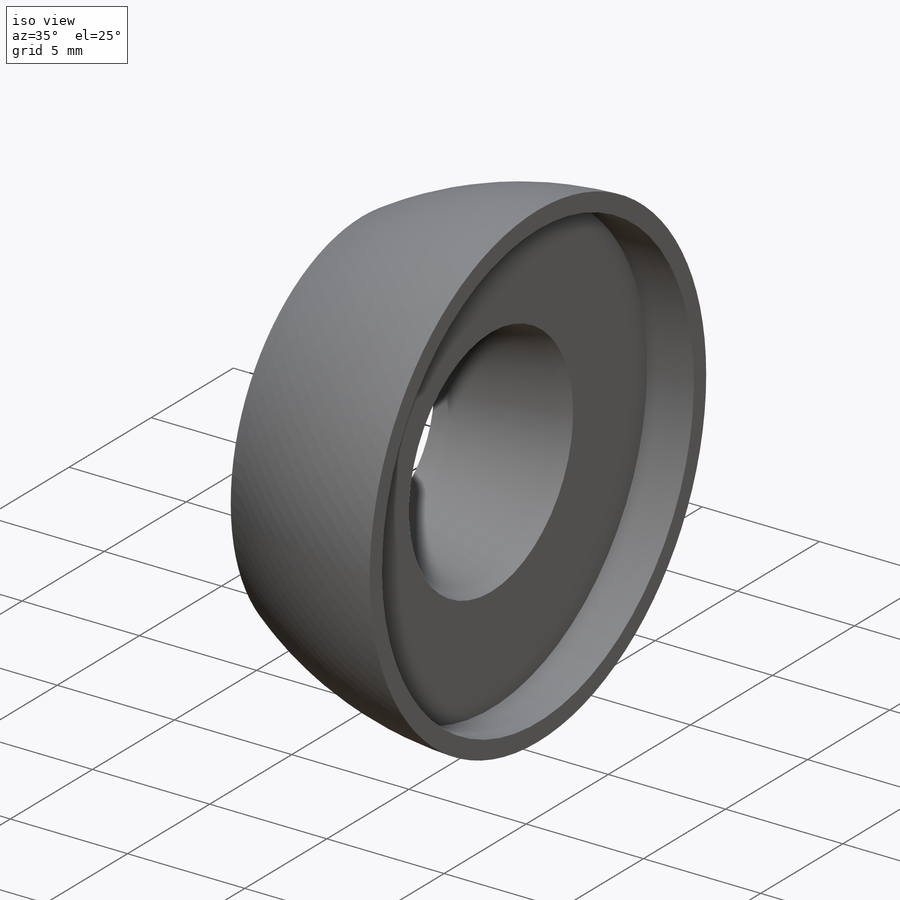
[diagram: iso view]
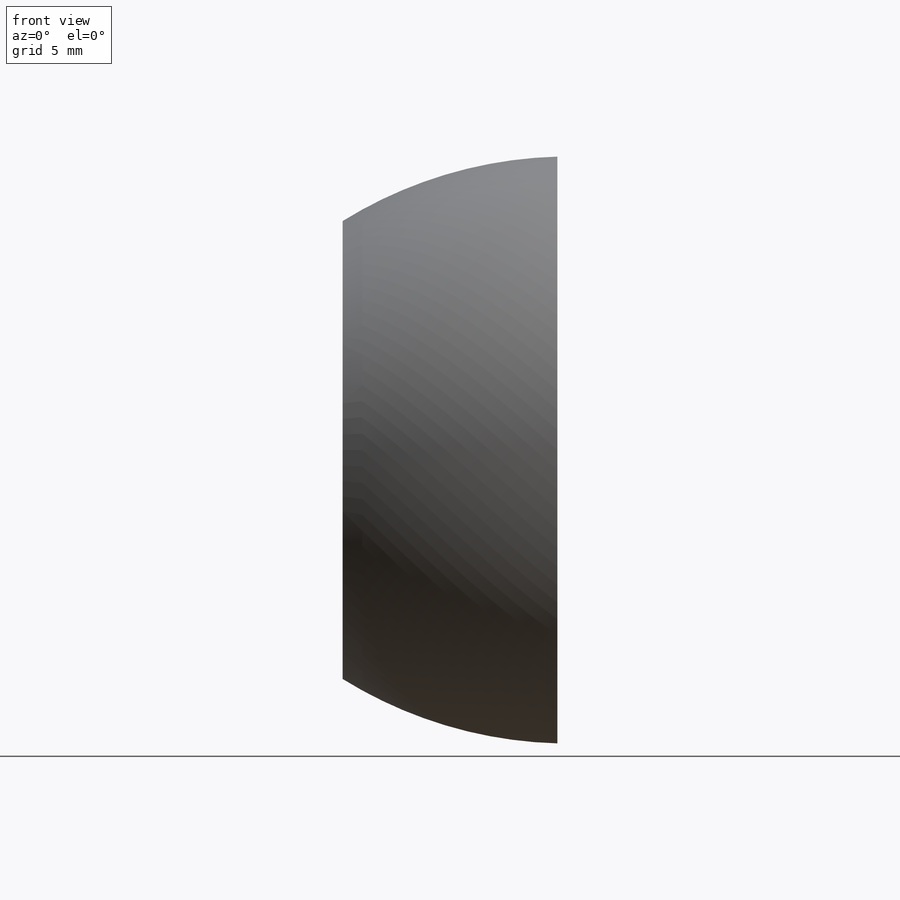
[diagram: front view]
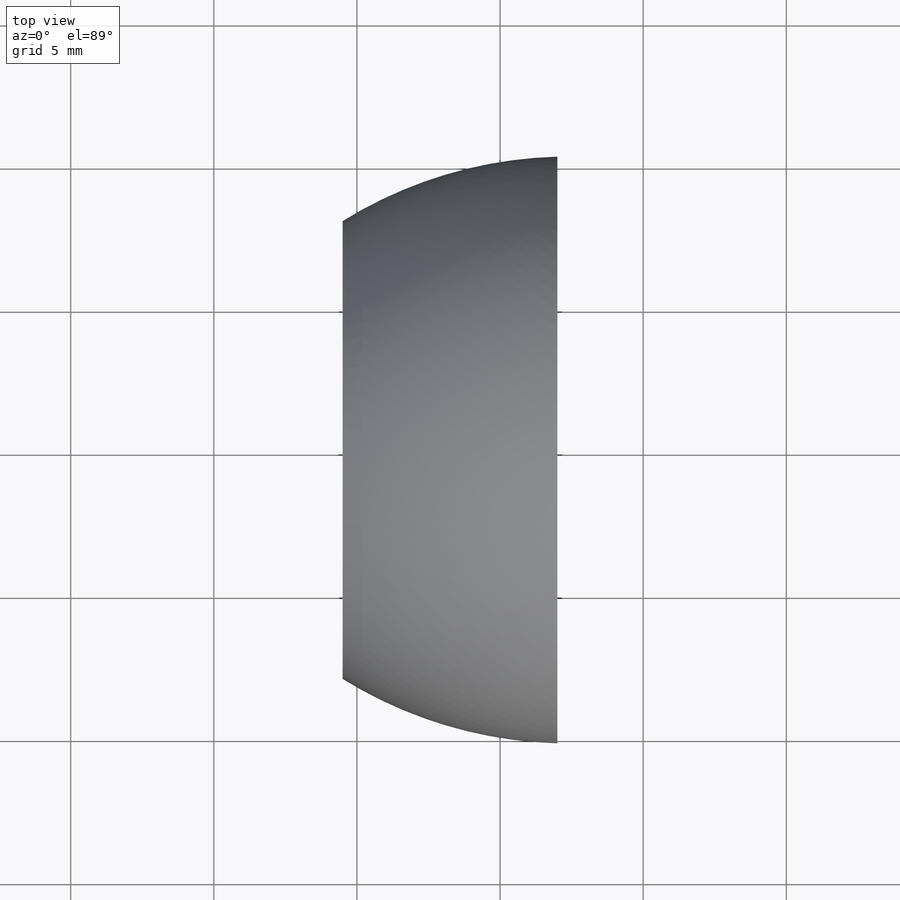
[diagram: top view]
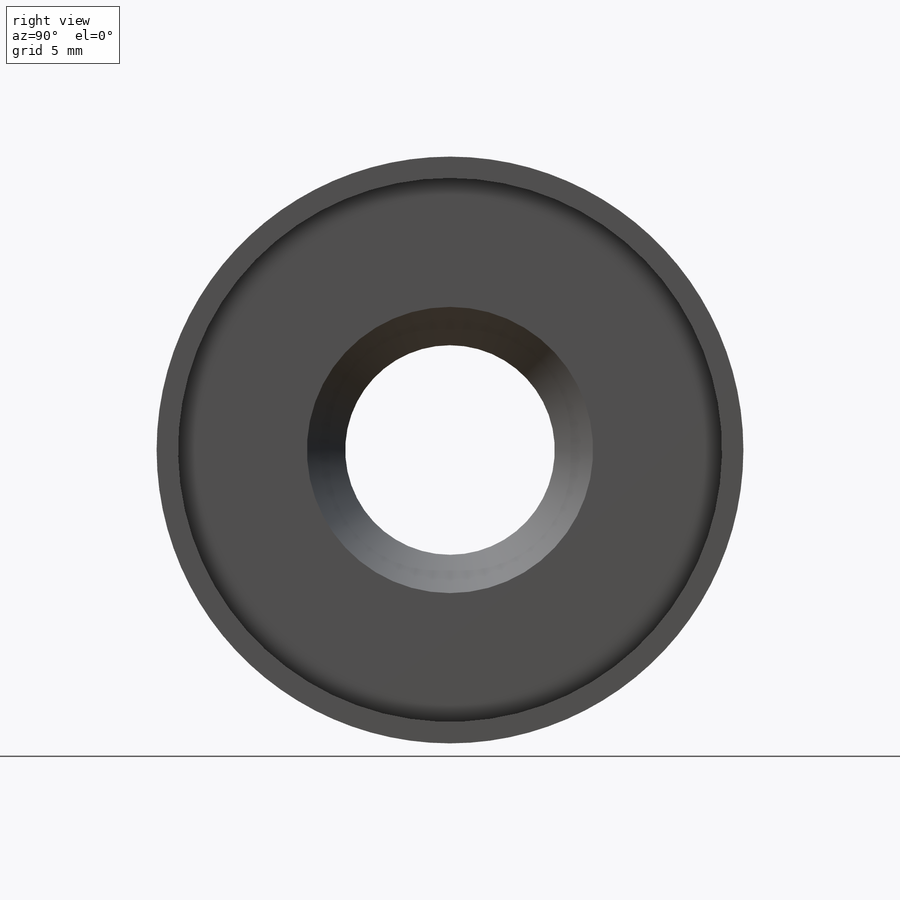
[diagram: right view]
SOLIDWORKS PART (.sldprt)
format: sldprt  version: not decoded by parser v0  size: 402,944 bytes
history: native  units: mm
features: sketch x2, material x1, revolve x1, cut_revolve x1, pattern_circular x1 (+13 scaffold rows collapsed)
feature tree (19):
  scaffold x13  (default folders/planes/origin — collapsed)
  material  "1345 Alloy"
  sketch  "Sketch1"  dims[c1.D7=3.0mm c1.D13=15.0mm c1.D1=~14.321825mm c2.D1=15.0deg c2.D2=10.0mm c2.D3=11.5mm c2.D4=19.0mm c2.D5=2.0mm c2.D6=1.0mm c2.D8=0.5mm c2.D9=10.0mm c2.D10=5.5mm c2.D11=16.0mm c2.D12=20.5mm]
  revolve  "Revolve1"  Angle=360deg
  sketch  "Sketch2"  dims[D3=15.0mm D1=6.7mm D2=6.5mm D4=12.0mm]
  cut_revolve  "Cut-Revolve1"  Angle=360deg
  pattern_circular  "CirPattern1"  Count=36 Angle=360deg
decode coverage: 5 of 5 modeling features carry decoded parameters
note: ~ marks probable driven/reference dimensions
note: suppression state not decoded; provenance and decode notes live in map.json
